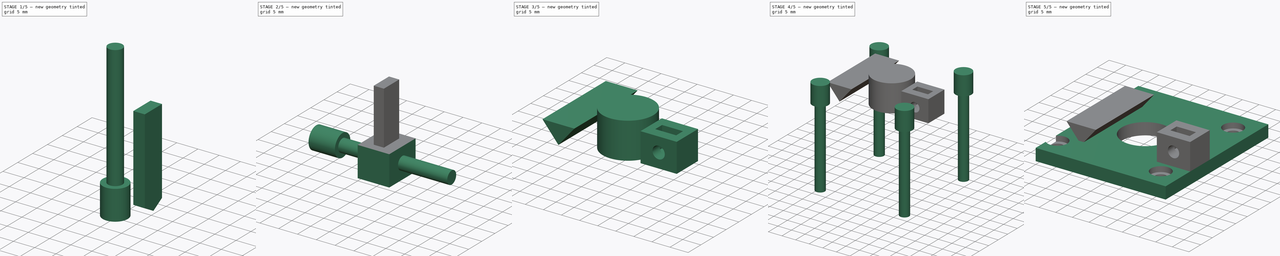
[diagram: build sequence overview — one tinted view per stage of 5, left to right]
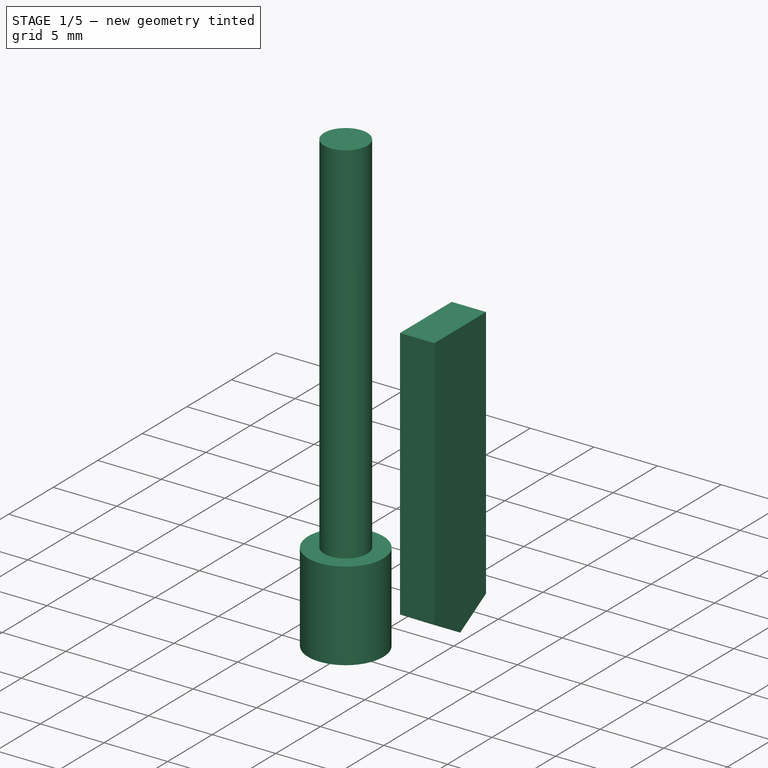
[diagram: stage 1 of 5 — iso view after this stage's code; geometry added in this stage tinted green]
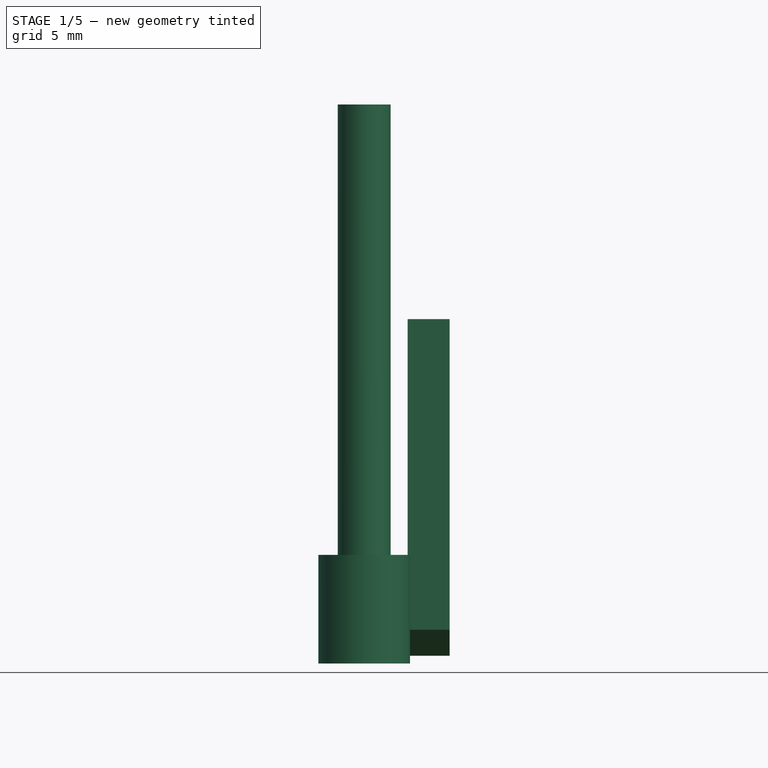
[diagram: stage 1 of 5 — front view after this stage's code; geometry added in this stage tinted green]
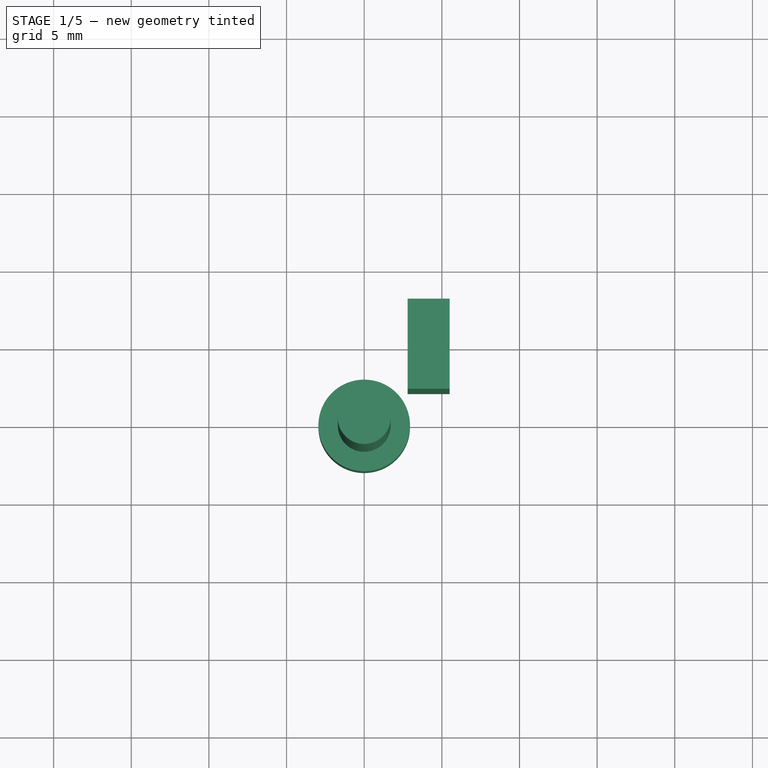
[diagram: stage 1 of 5 — top view after this stage's code; geometry added in this stage tinted green]
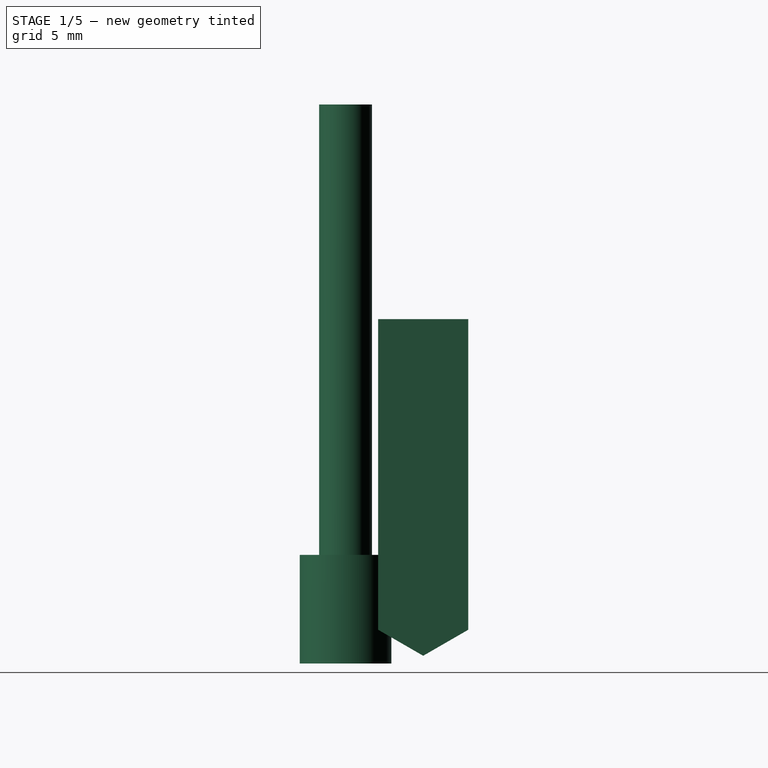
[diagram: stage 1 of 5 — right view after this stage's code; geometry added in this stage tinted green]
FCSTD DOCUMENT  (FreeCAD 0.16R6460 (Git))
Label: Art56MotorHolderB
License: All rights reserved
LicenseURL: http://en.wikipedia.org/wiki/All_rights_reserved
objects: Part::FeaturePython×8, Part::MultiFuse×4, Part::Cylinder×3, Sketcher::SketchObject×2, PartDesign::Pad×2, Part::Box×2, Part::Cut×2, App::DocumentObjectGroup×1
note: 25 computed .brp shape members not serialized (recipe doc carries the construction recipe); baked Part::Feature solids carry a one-line shape summary decoded from their .brp

FEATURE [Part::Cylinder] Cylinder  label="M3BoltHead"
  Angle = 360
  Height = 7
  Radius = 2.95
FEATURE [Part::Cylinder] Cylinder001  label="M3BoltBody"
  Angle = 360
  Height = 30
  Placement = pos=(0,0,6) rot=(0,0,1;0rad)
  Radius = 1.7
FEATURE [Sketcher::SketchObject] Sketch003  label="M3NutHousingSketch"
  sketch-geometry (5):
    g0: LineSegment StartX=0 StartY=0 StartZ=0 EndX=1.67432 EndY=2.9 EndZ=0
    g1: LineSegment StartX=1.67432 StartY=2.9 StartZ=0 EndX=21.6743 EndY=2.9 EndZ=0
    g2: LineSegment StartX=21.6743 StartY=2.9 StartZ=0 EndX=21.6743 EndY=-2.9 EndZ=0
    g3: LineSegment StartX=21.6743 StartY=-2.9 StartZ=0 EndX=1.67432 EndY=-2.9 EndZ=0
    g4: LineSegment StartX=1.67432 StartY=-2.9 StartZ=0 EndX=0 EndY=0 EndZ=0
  constraints (14):
    c: Coincident(g-1,g0)
    c: Coincident(g0,g1)
    c: Horizontal(g1)
    c: Coincident(g1,g2)
    c: Vertical(g2)
    c: Coincident(g2,g3)
    c: Horizontal(g3)
    c: Coincident(g3,g4)
    c: Coincident(g4,g0)
    c: Equal(g3,g1)
    c: Equal(g4,g0)
    c: DistanceY(g2) = -5.8
    c: Angle(g-1,g0) = 1.0472
    c: DistanceX(g3) = -20
FEATURE [PartDesign::Pad] Pad002  label="M3NutHousing"
  Length = 2.7
  Length2 = 100
  Sketch = -> Sketch003
  Type = 0
FEATURE [Part::FeaturePython] Clone292  label="Clone of M3NutHousing026"  # Draft clone (typed FeaturePython)
  Objects = -> [Pad002]
  Placement = pos=(5.5,5,0.5) rot=(0,-1,0;1.5708rad)
  Scale = (1,1,1)
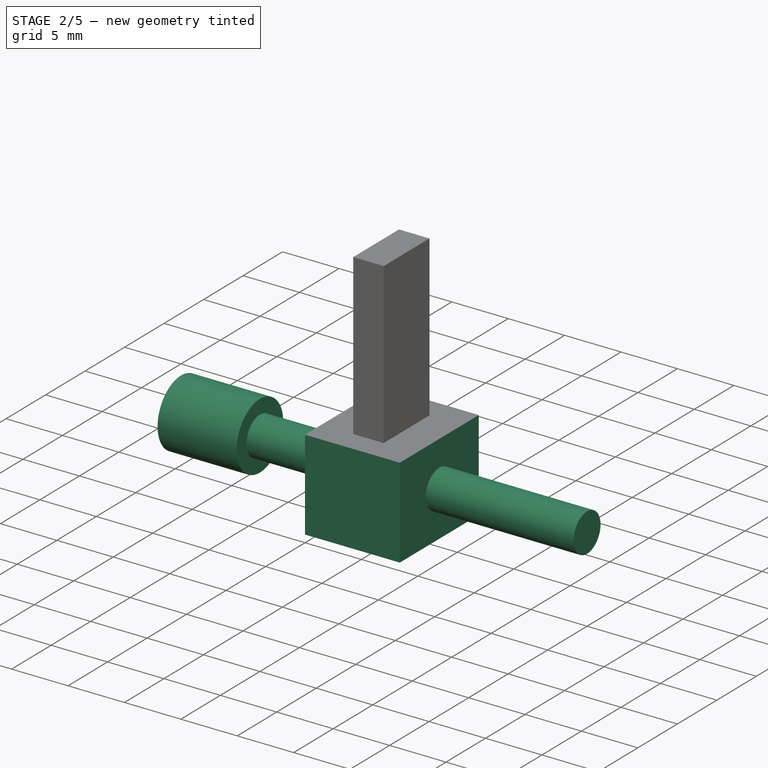
[diagram: stage 2 of 5 — iso view after this stage's code; geometry added in this stage tinted green]
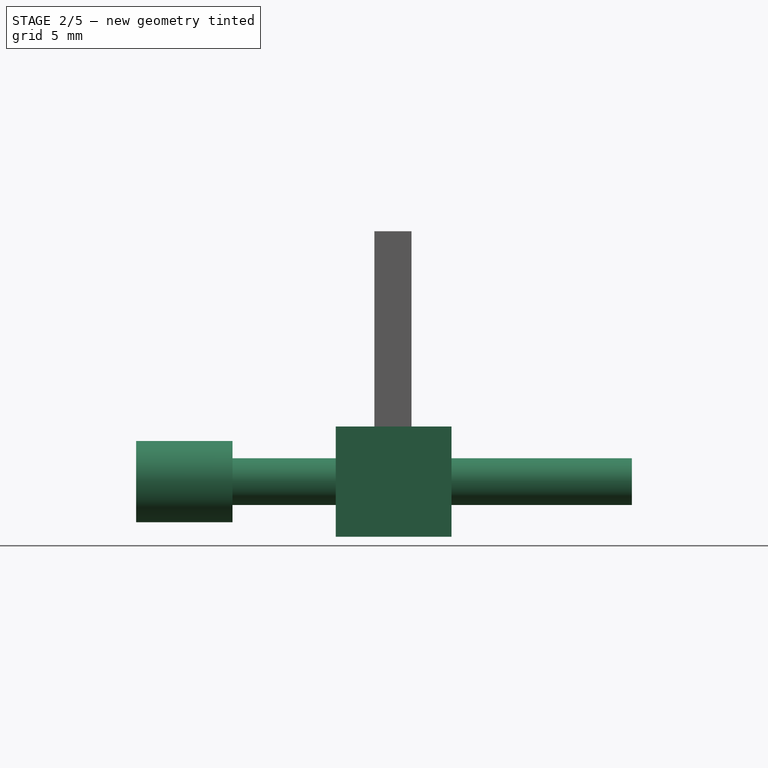
[diagram: stage 2 of 5 — front view after this stage's code; geometry added in this stage tinted green]
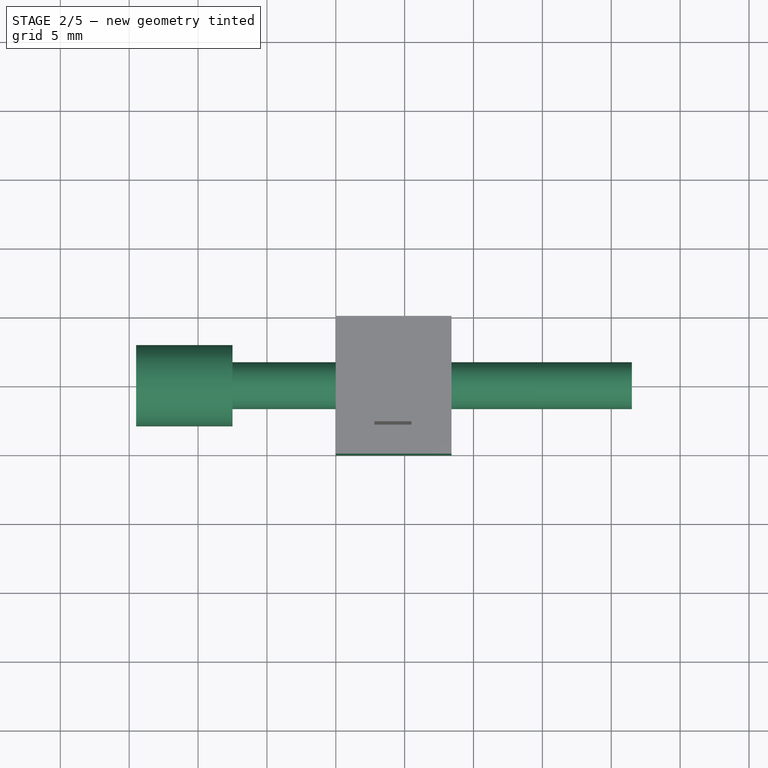
[diagram: stage 2 of 5 — top view after this stage's code; geometry added in this stage tinted green]
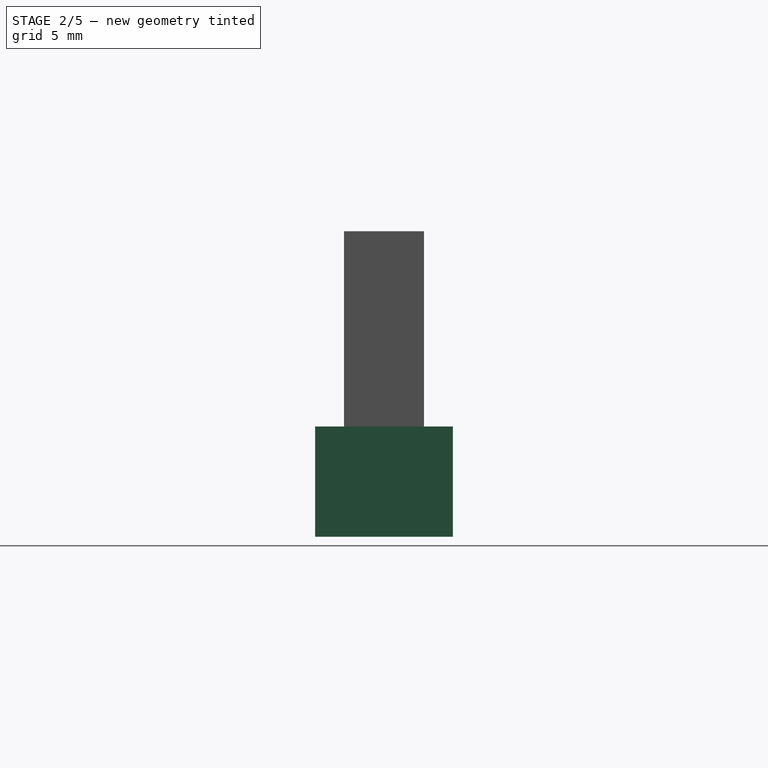
[diagram: stage 2 of 5 — right view after this stage's code; geometry added in this stage tinted green]
FEATURE [Part::MultiFuse] Fusion  label="M3Bolt"
  Shapes = -> [Cylinder001,Cylinder]
FEATURE [Sketcher::SketchObject] Sketch056
  Placement = pos=(0,0,0) rot=(0.57735,0.57735,0.57735;2.0944rad)
  sketch-geometry (3):
    g0: LineSegment StartX=-4.4 StartY=5.24372 StartZ=0 EndX=4.4 EndY=5.24372 EndZ=0
    g1: LineSegment StartX=4.4 StartY=5.24372 StartZ=0 EndX=0 EndY=0 EndZ=0
    g2: LineSegment StartX=0 StartY=0 StartZ=0 EndX=-4.4 EndY=5.24372 EndZ=0
  constraints (8):
    c: Horizontal(g0)
    c: Coincident(g0,g1)
    c: Coincident(g1,g2)
    c: Coincident(g2,g0)
    c: DistanceX(g0) = 8.8
    c: Angle(g2,g0) = 0.872665
    c: Angle(g0,g1) = 0.872665
    c: Coincident(g1,g-1)
FEATURE [Part::Box] Box255  label="Cube019"
  Height = 8
  Length = 8.4
  Width = 10
FEATURE [Part::FeaturePython] Clone291  label="Clone of M3Bolt103"  # Draft clone (typed FeaturePython)
  Objects = -> [Fusion]
  Placement = pos=(-14.5,5,4) rot=(0,1,0;1.5708rad)
  Scale = (1,1,1)
FEATURE [Part::MultiFuse] Fusion101
  Shapes = -> [Clone291,Clone292]
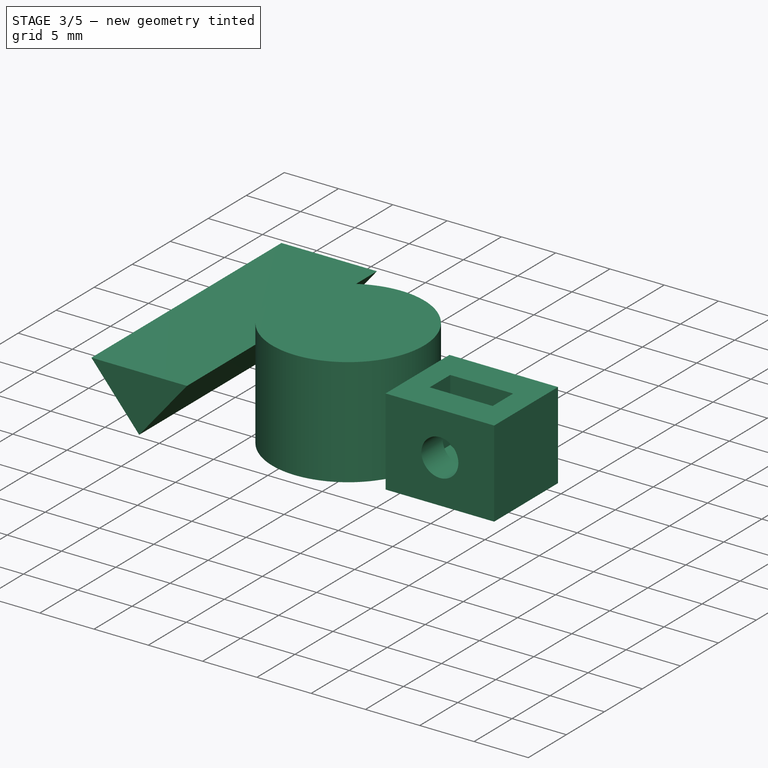
[diagram: stage 3 of 5 — iso view after this stage's code; geometry added in this stage tinted green]
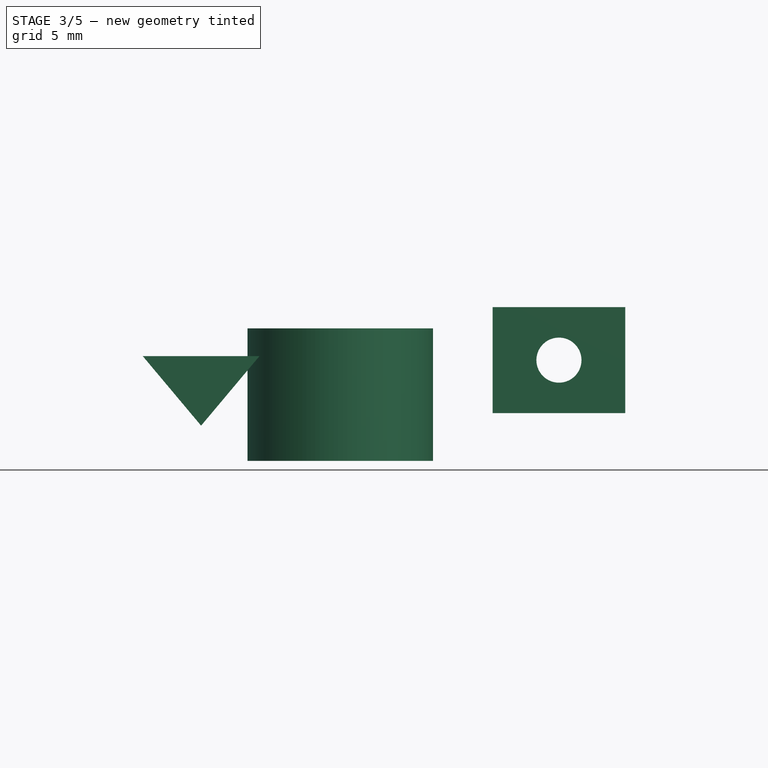
[diagram: stage 3 of 5 — front view after this stage's code; geometry added in this stage tinted green]
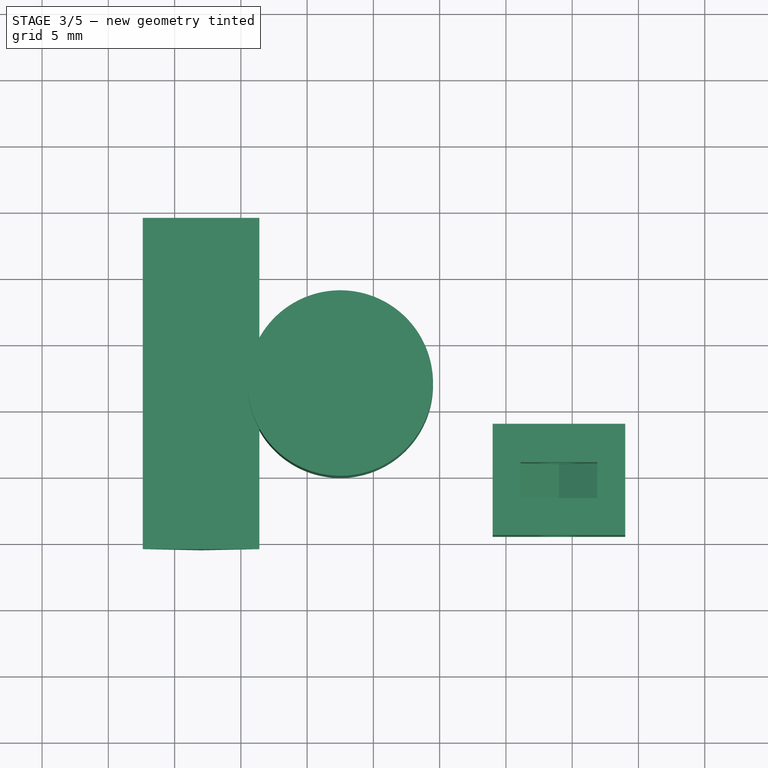
[diagram: stage 3 of 5 — top view after this stage's code; geometry added in this stage tinted green]
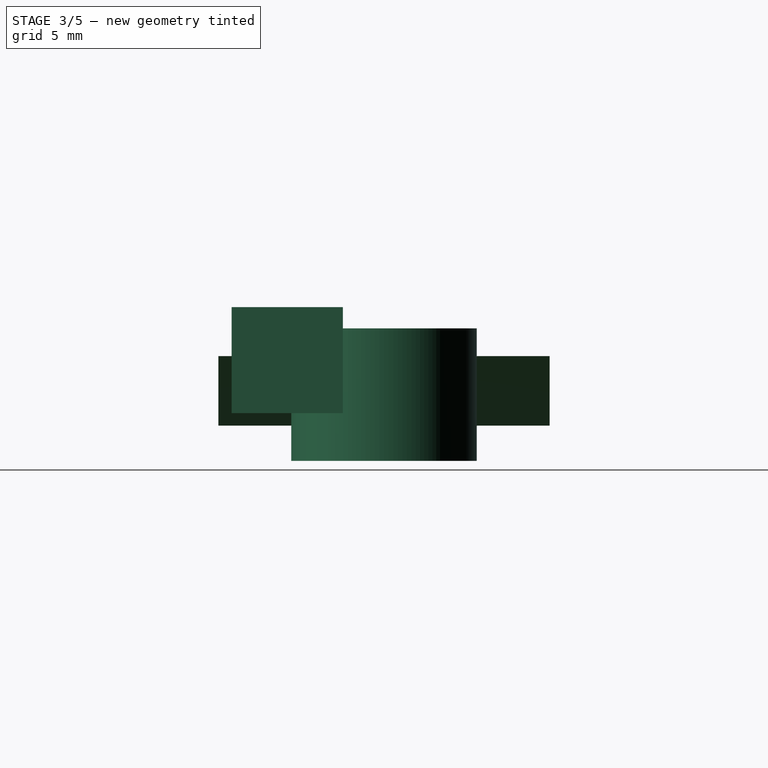
[diagram: stage 3 of 5 — right view after this stage's code; geometry added in this stage tinted green]
FEATURE [Part::Cylinder] Cylinder1028  label="Cylinder1072"
  Angle = 360
  Height = 10
  Placement = pos=(17.5,22,0) rot=(0,0,1;0rad)
  Radius = 7
FEATURE [PartDesign::Pad] Pad039  label="Art56MilanoGuideMaster"
  Length = 25
  Length2 = 100
  Midplane = true
  Placement = pos=(0,0,0) rot=(0.57735,0.57735,0.57735;2.0944rad)
  Sketch = -> Sketch056
  Type = 0
FEATURE [Part::FeaturePython] Clone298  label="Clone of Art56MilanoGuideMaster001"  # Draft clone (typed FeaturePython)
  Objects = -> [Pad039]
  Placement = pos=(7,22,2.65628) rot=(0,0.707107,0.707107;3.14159rad)
  Scale = (1,1,1)
FEATURE [Part::Cut] Cut087  label="Art56NutHolderMaster"
  Base = -> Box255
  Tool = -> Fusion101
FEATURE [Part::FeaturePython] Clone299  label="Clone of Art56NutHolderMaster001"  # Draft clone (typed FeaturePython)
  Objects = -> [Cut087]
  Placement = pos=(39,10.5,3.6) rot=(0,0,1;1.5708rad)
  Scale = (1,1,1)
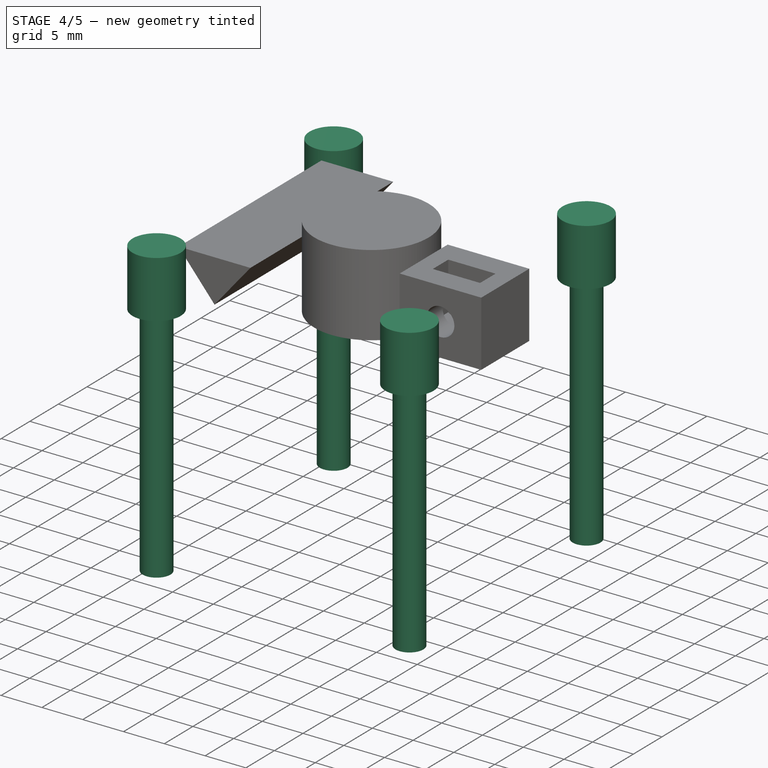
[diagram: stage 4 of 5 — iso view after this stage's code; geometry added in this stage tinted green]
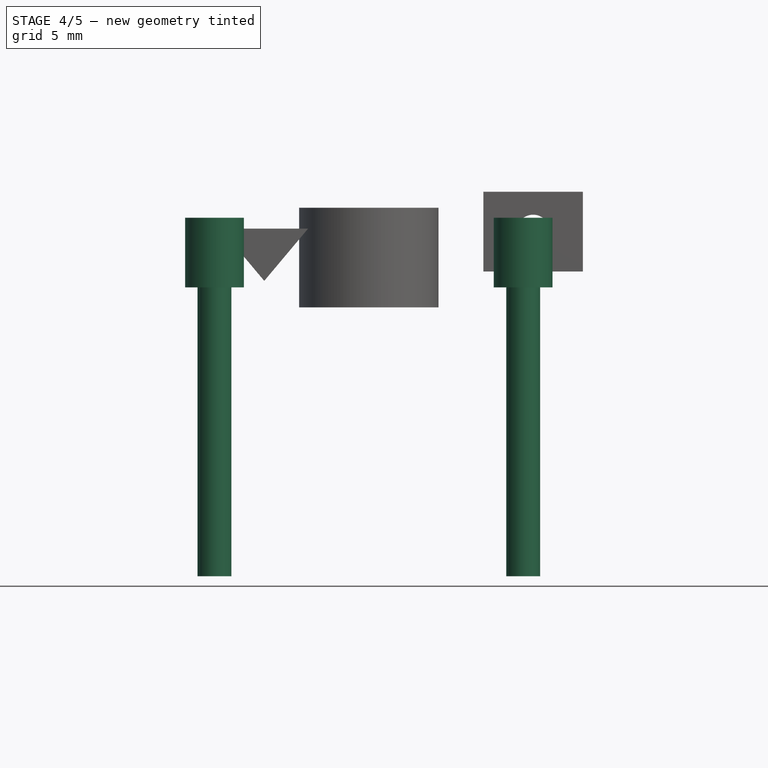
[diagram: stage 4 of 5 — front view after this stage's code; geometry added in this stage tinted green]
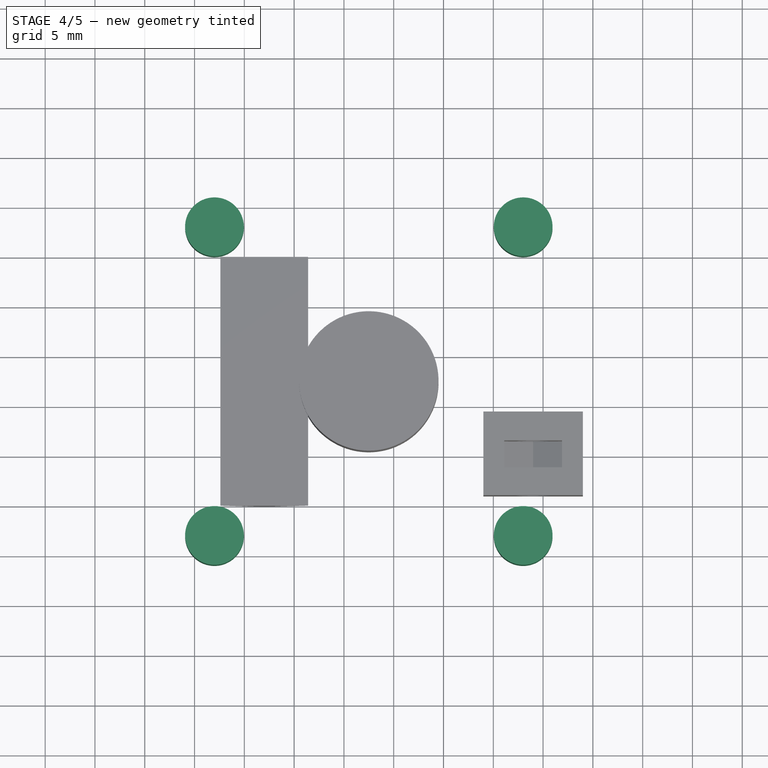
[diagram: stage 4 of 5 — top view after this stage's code; geometry added in this stage tinted green]
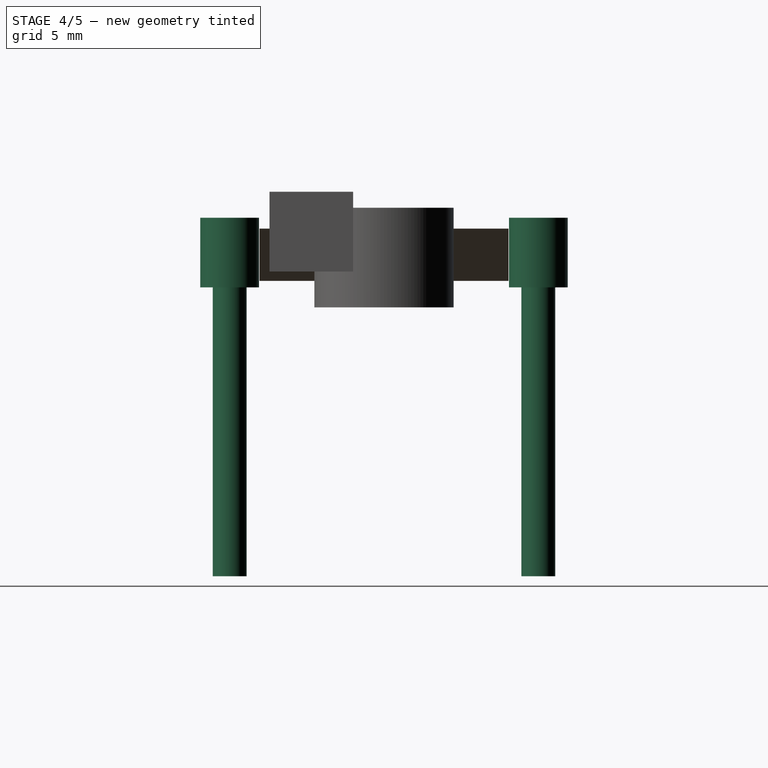
[diagram: stage 4 of 5 — right view after this stage's code; geometry added in this stage tinted green]
FEATURE [Part::FeaturePython] Clone294  label="Clone of M3Bolt104"  # Draft clone (typed FeaturePython)
  Objects = -> [Fusion]
  Placement = pos=(2,37.5,9) rot=(1,0,0;3.14159rad)
  Scale = (1,1,1)
FEATURE [Part::FeaturePython] Clone295  label="Clone of M3Bolt105"  # Draft clone (typed FeaturePython)
  Objects = -> [Fusion]
  Placement = pos=(2,6.5,9) rot=(1,0,0;3.14159rad)
  Scale = (1,1,1)
FEATURE [Part::FeaturePython] Clone296  label="Clone of M3Bolt106"  # Draft clone (typed FeaturePython)
  Objects = -> [Fusion]
  Placement = pos=(33,6.5,9) rot=(1,0,0;3.14159rad)
  Scale = (1,1,1)
FEATURE [Part::FeaturePython] Clone297  label="Clone of M3Bolt107"  # Draft clone (typed FeaturePython)
  Objects = -> [Fusion]
  Placement = pos=(33,37.5,9) rot=(1,0,0;3.14159rad)
  Scale = (1,1,1)
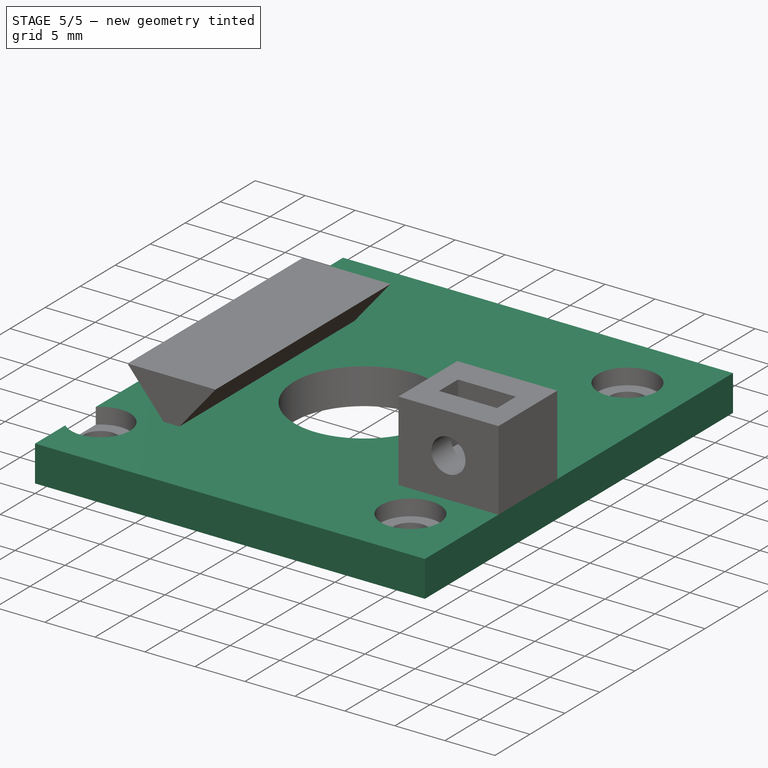
[diagram: stage 5 of 5 — iso view after this stage's code; geometry added in this stage tinted green]
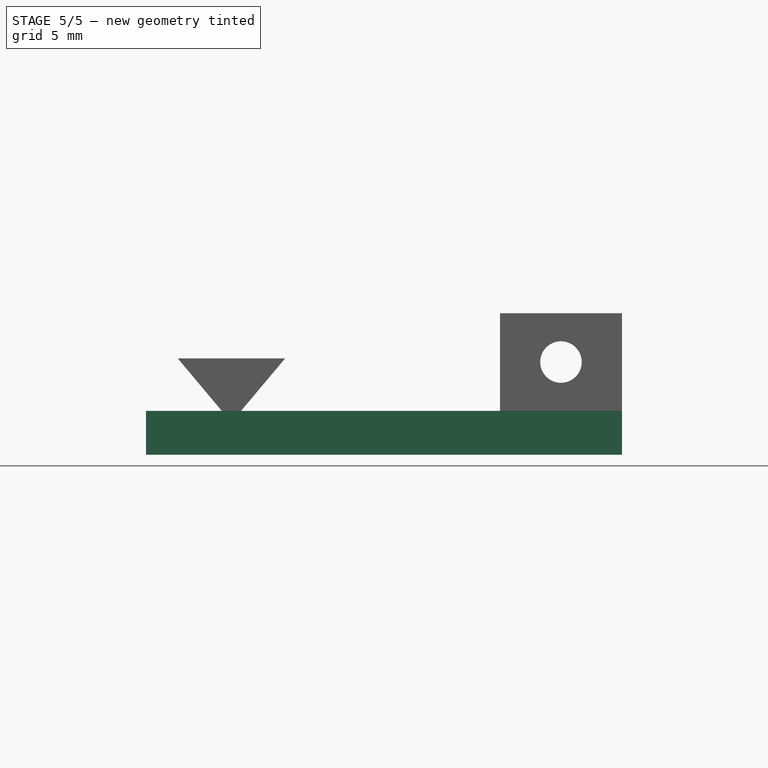
[diagram: stage 5 of 5 — front view after this stage's code; geometry added in this stage tinted green]
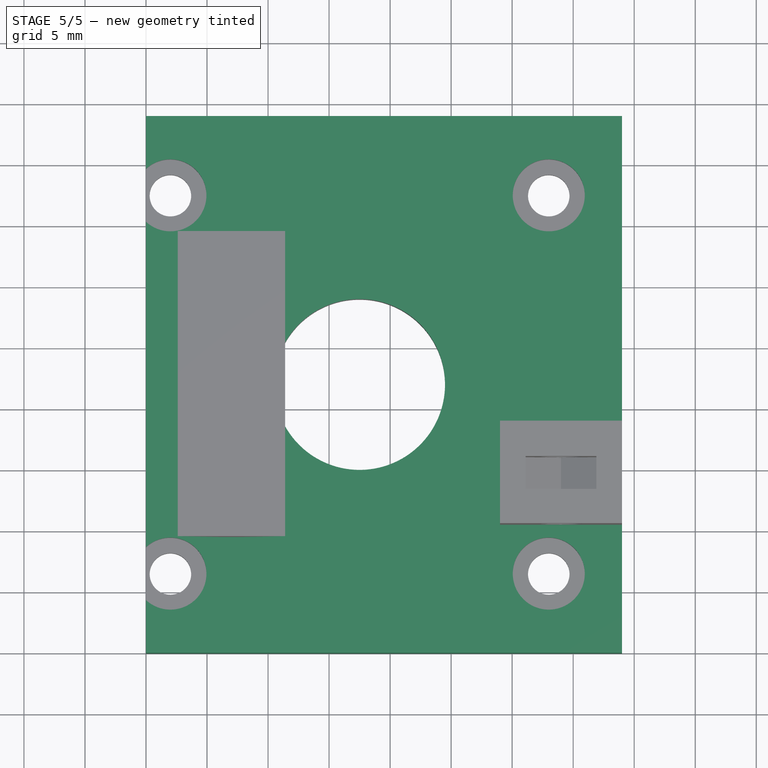
[diagram: stage 5 of 5 — top view after this stage's code; geometry added in this stage tinted green]
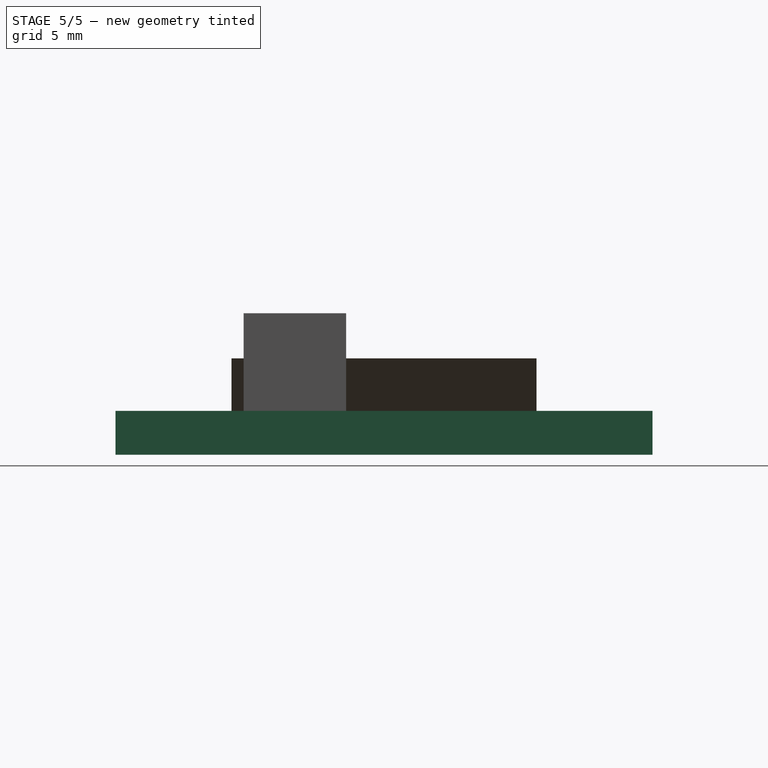
[diagram: stage 5 of 5 — right view after this stage's code; geometry added in this stage tinted green]
FEATURE [Part::Box] Box256  label="Cube020"
  Height = 3.6
  Length = 39
  Width = 44
FEATURE [Part::MultiFuse] Fusion103
  Shapes = -> [Clone296,Clone295,Clone294,Clone297,Cylinder1028]
FEATURE [Part::Cut] Cut088  label="Cut159"
  Base = -> Box256
  Tool = -> Fusion103
FEATURE [Part::MultiFuse] Fusion120  label="Art56MotorHolderB"
  Shapes = -> [Cut088,Clone299,Clone298]
FEATURE [App::DocumentObjectGroup] Group  label="Master"
  Group = -> [Fusion,Pad002,Pad039,Cut087]
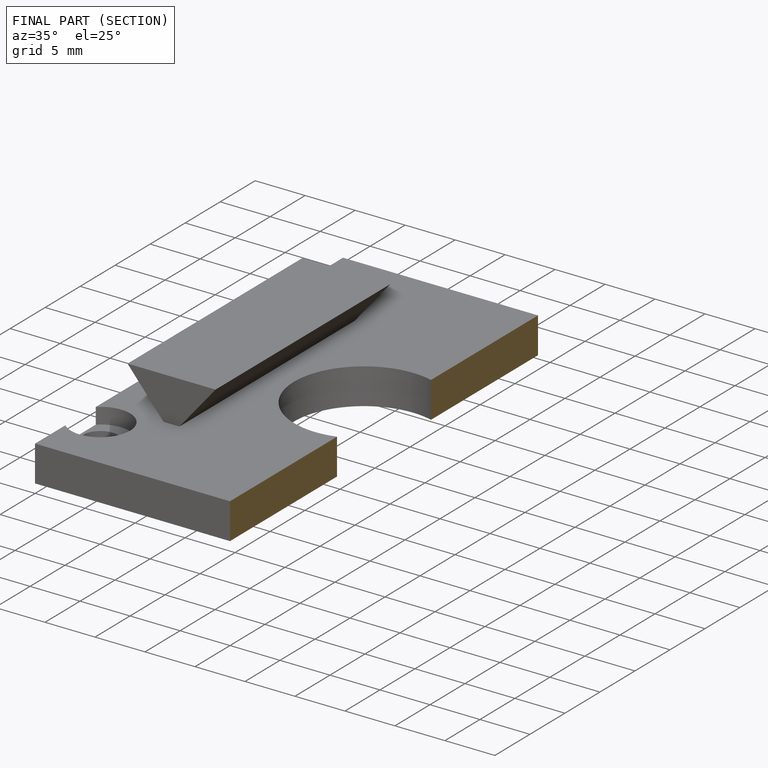
[diagram: finished part — half-section view (interior)]
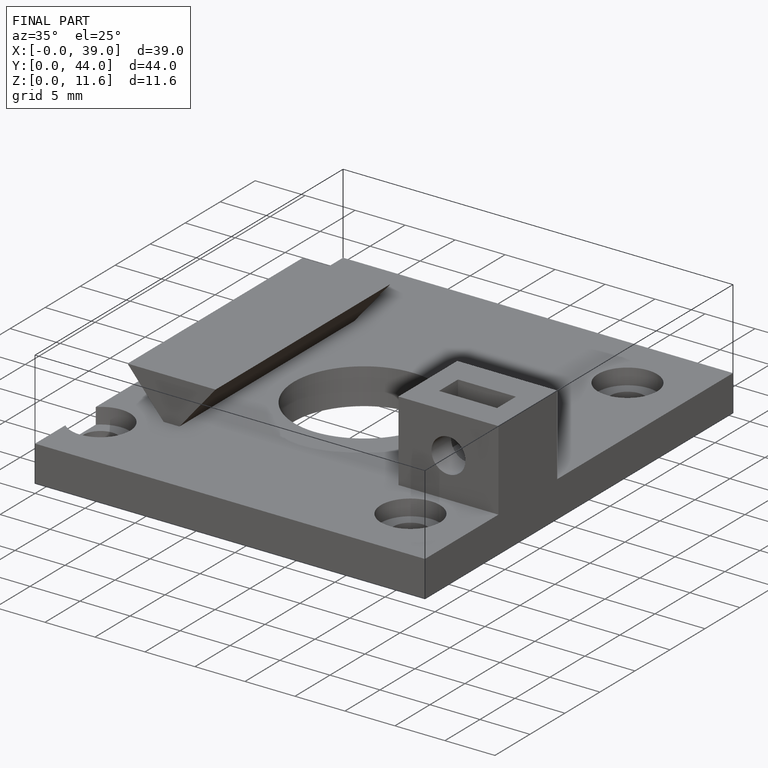
[diagram: finished part — iso view with bounding-box wireframe]
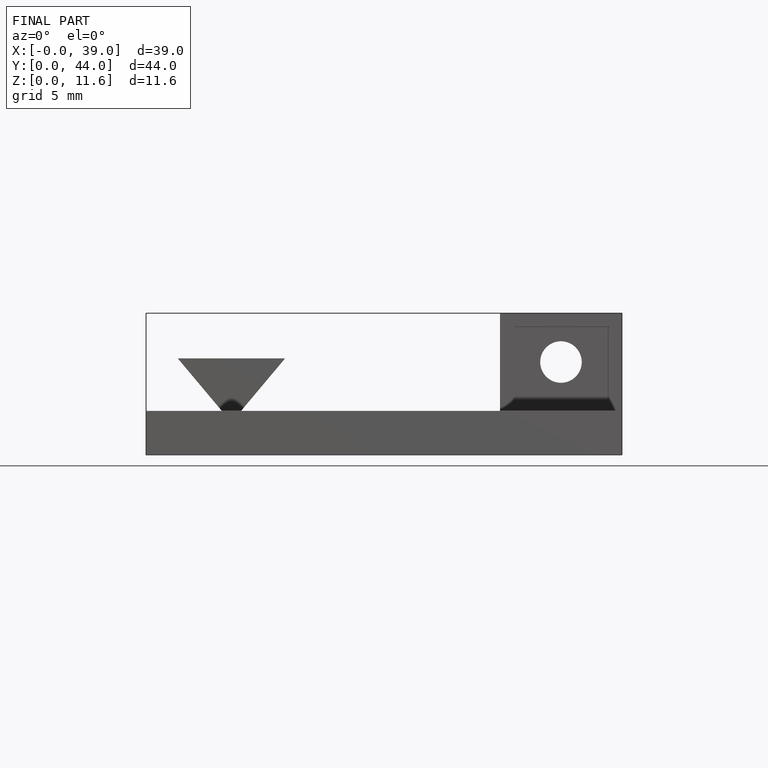
[diagram: finished part — front view with bounding-box wireframe]
